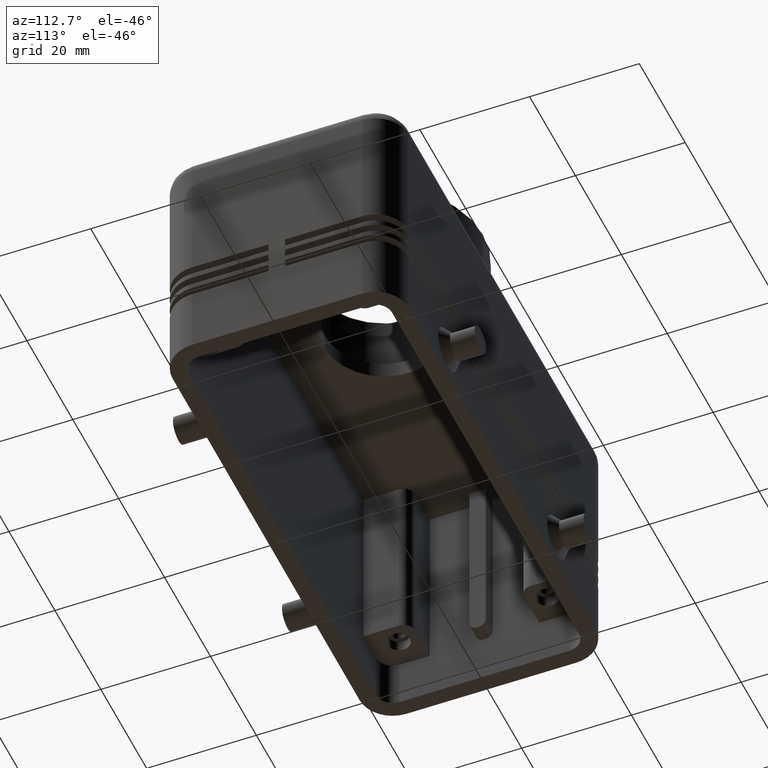
[diagram: clean part render]
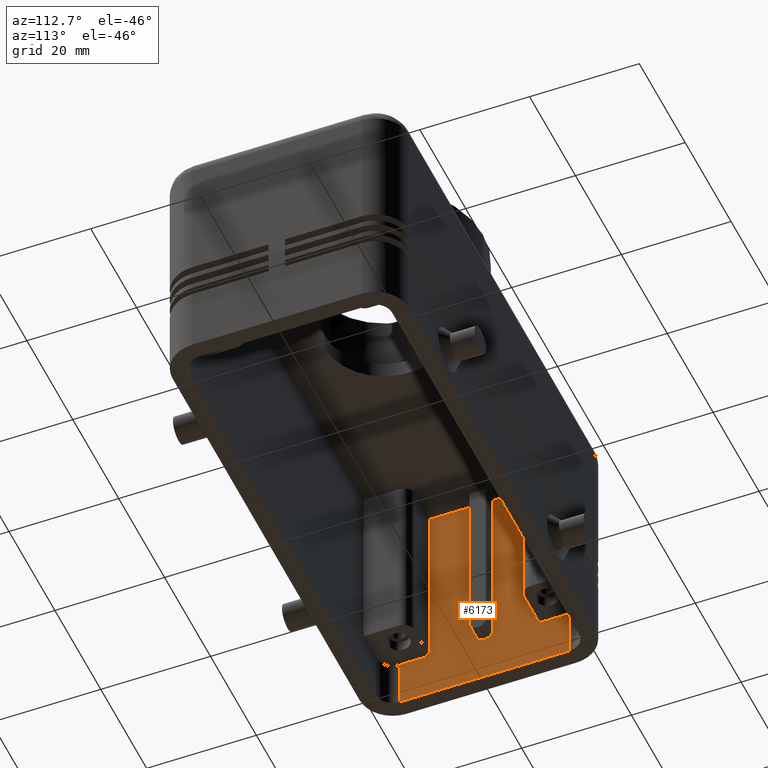
[diagram: same view with one face highlighted and labeled with its STEP entity id]
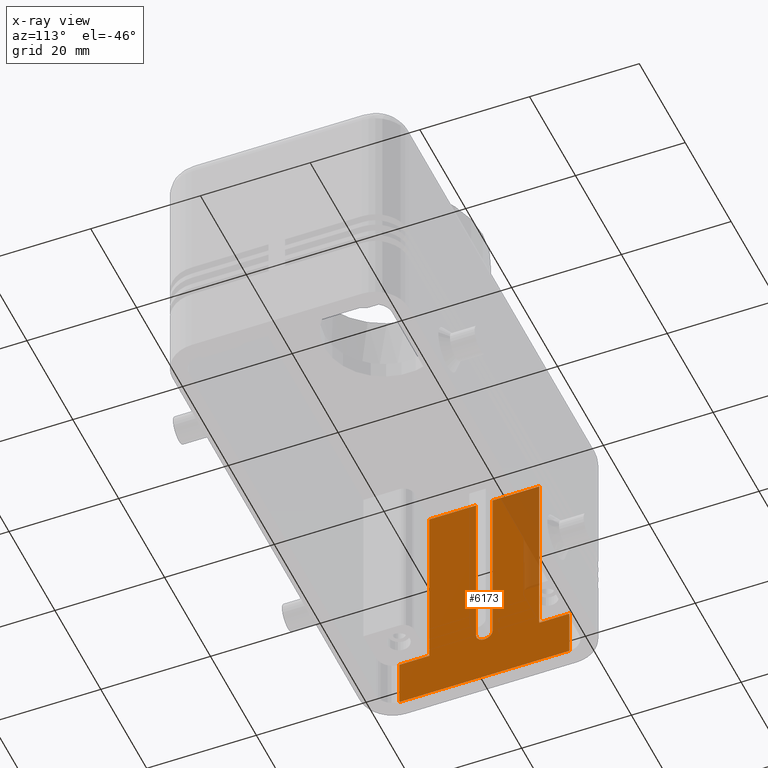
[diagram: x-ray of the same camera — body ghosted, the highlighted face saturated]
A machine part, auxiliary view. The second image highlights one B-rep face of the part: STEP entity #6173.
The next image is the same camera in x-ray: the body ghosted, the highlighted face saturated — about 11% of this face is hidden behind the body in this view.
In plain terms, the highlighted planar face has unit normal (-1, 0, 0).
Its self-contained STEP definition (entity closure, byte-faithful):
#3643=CARTESIAN_POINT('',(-43.750000000000000,1.499999999999991,41.999999999999993));
#3644=VERTEX_POINT('',#3643);
#3659=CARTESIAN_POINT('',(-43.750000000000000,1.499999999999997,10.500000000000004));
#3660=VERTEX_POINT('',#3659);
#3667=CARTESIAN_POINT('',(-43.750000000000000,1.499999999999991,41.999999999999993));
#3668=DIRECTION('',(0.0,0.0,-1.0));
#3669=VECTOR('',#3668,31.499999999999989);
#3670=LINE('',#3667,#3669);
#3671=EDGE_CURVE('',#3644,#3660,#3670,.T.);
#3690=CARTESIAN_POINT('',(-43.750000000000000,-1.499999999999997,10.500000000000004));
#3691=VERTEX_POINT('',#3690);
#3698=CARTESIAN_POINT('',(-43.750000000000000,3.050950E-015,10.500000000000004));
#3699=DIRECTION('',(-1.0,0.0,0.0));
#3700=DIRECTION('',(0.0,1.0,0.0));
#3701=AXIS2_PLACEMENT_3D('',#3698,#3699,#3700);
#3702=CIRCLE('',#3701,1.499999999999995);
#3703=EDGE_CURVE('',#3660,#3691,#3702,.T.);
#3714=CARTESIAN_POINT('',(-43.750000000000000,-1.499999999999991,41.999999999999993));
#3715=VERTEX_POINT('',#3714);
#3724=CARTESIAN_POINT('',(-43.750000000000000,-1.499999999999997,10.500000000000004));
#3725=DIRECTION('',(0.0,0.0,1.0));
#3726=VECTOR('',#3725,31.499999999999989);
#3727=LINE('',#3724,#3726);
#3728=EDGE_CURVE('',#3691,#3715,#3727,.T.);
#3889=CARTESIAN_POINT('',(-43.749999999999986,-10.0,42.000000000000021));
#3890=VERTEX_POINT('',#3889);
#3897=CARTESIAN_POINT('',(-43.750000000000000,-1.499999999999991,41.999999999999993));
#3898=DIRECTION('',(0.0,-1.0,0.0));
#3899=VECTOR('',#3898,8.500000000000009);
#3900=LINE('',#3897,#3899);
#3901=EDGE_CURVE('',#3715,#3890,#3900,.T.);
#3906=CARTESIAN_POINT('',(-43.749999999999986,10.0,42.000000000000021));
#3907=VERTEX_POINT('',#3906);
#3908=CARTESIAN_POINT('',(-43.749999999999986,10.0,42.000000000000021));
#3909=DIRECTION('',(0.0,-1.0,0.0));
#3910=VECTOR('',#3909,8.500000000000009);
#3911=LINE('',#3908,#3910);
#3912=EDGE_CURVE('',#3907,#3644,#3911,.T.);
#5799=CARTESIAN_POINT('',(-43.750000000000000,10.0,9.0));
#5800=VERTEX_POINT('',#5799);
#5807=CARTESIAN_POINT('',(-43.750000000000000,15.499999999999998,9.0));
#5808=VERTEX_POINT('',#5807);
#5809=CARTESIAN_POINT('',(-43.750000000000000,10.0,9.0));
#5810=DIRECTION('',(0.0,1.0,0.0));
#5811=VECTOR('',#5810,5.499999999999998);
#5812=LINE('',#5809,#5811);
#5813=EDGE_CURVE('',#5800,#5808,#5812,.T.);
#5853=CARTESIAN_POINT('',(-43.749999999999986,10.0,42.000000000000021));
#5854=DIRECTION('',(0.0,0.0,-1.0));
#5855=VECTOR('',#5854,33.000000000000021);
#5856=LINE('',#5853,#5855);
#5857=EDGE_CURVE('',#3907,#5800,#5856,.T.);
#5918=CARTESIAN_POINT('',(-43.750000000000000,-10.0,9.0));
#5919=VERTEX_POINT('',#5918);
#5926=CARTESIAN_POINT('',(-43.750000000000000,-10.0,9.0));
#5927=DIRECTION('',(0.0,0.0,1.0));
#5928=VECTOR('',#5927,33.000000000000021);
#5929=LINE('',#5926,#5928);
#5930=EDGE_CURVE('',#5919,#3890,#5929,.T.);
#6109=CARTESIAN_POINT('',(-43.750000000000000,-15.499999999999998,9.0));
#6110=VERTEX_POINT('',#6109);
#6119=CARTESIAN_POINT('',(-43.750000000000000,-15.499999999999998,0.0));
#6120=VERTEX_POINT('',#6119);
#6128=CARTESIAN_POINT('',(-43.750000000000000,-15.499999999999998,0.0));
#6129=DIRECTION('',(0.0,0.0,1.0));
#6130=VECTOR('',#6129,9.0);
#6131=LINE('',#6128,#6130);
#6132=EDGE_CURVE('',#6120,#6110,#6131,.T.);
#6137=CARTESIAN_POINT('',(-43.750000000000000,-15.499999999999998,0.0));
#6138=DIRECTION('',(-1.0,0.0,0.0));
#6139=DIRECTION('',(0.0,0.0,1.0));
#6140=AXIS2_PLACEMENT_3D('',#6137,#6138,#6139);
#6141=PLANE('',#6140);
#6142=ORIENTED_EDGE('',*,*,#3728,.T.);
#6143=ORIENTED_EDGE('',*,*,#3901,.T.);
#6144=ORIENTED_EDGE('',*,*,#5930,.F.);
#6145=CARTESIAN_POINT('',(-43.750000000000000,-15.499999999999998,9.0));
#6146=DIRECTION('',(0.0,1.0,0.0));
#6147=VECTOR('',#6146,5.499999999999998);
#6148=LINE('',#6145,#6147);
#6149=EDGE_CURVE('',#6110,#5919,#6148,.T.);
#6150=ORIENTED_EDGE('',*,*,#6149,.F.);
#6151=ORIENTED_EDGE('',*,*,#6132,.F.);
#6152=CARTESIAN_POINT('',(-43.750000000000000,15.499999999999998,0.0));
#6153=VERTEX_POINT('',#6152);
#6154=CARTESIAN_POINT('',(-43.750000000000000,15.499999999999998,0.0));
#6155=DIRECTION('',(0.0,-1.0,0.0));
#6156=VECTOR('',#6155,30.999999999999996);
#6157=LINE('',#6154,#6156);
#6158=EDGE_CURVE('',#6153,#6120,#6157,.T.);
#6159=ORIENTED_EDGE('',*,*,#6158,.F.);
#6160=CARTESIAN_POINT('',(-43.750000000000000,15.499999999999998,0.0));
#6161=DIRECTION('',(0.0,0.0,1.0));
#6162=VECTOR('',#6161,9.0);
#6163=LINE('',#6160,#6162);
#6164=EDGE_CURVE('',#6153,#5808,#6163,.T.);
#6165=ORIENTED_EDGE('',*,*,#6164,.T.);
#6166=ORIENTED_EDGE('',*,*,#5813,.F.);
#6167=ORIENTED_EDGE('',*,*,#5857,.F.);
#6168=ORIENTED_EDGE('',*,*,#3912,.T.);
#6169=ORIENTED_EDGE('',*,*,#3671,.T.);
#6170=ORIENTED_EDGE('',*,*,#3703,.T.);
#6171=EDGE_LOOP('',(#6142,#6143,#6144,#6150,#6151,#6159,#6165,#6166,#6167,#6168,#6169,#6170));
#6172=FACE_OUTER_BOUND('',#6171,.T.);
#6173=ADVANCED_FACE('',(#6172),#6141,.F.);